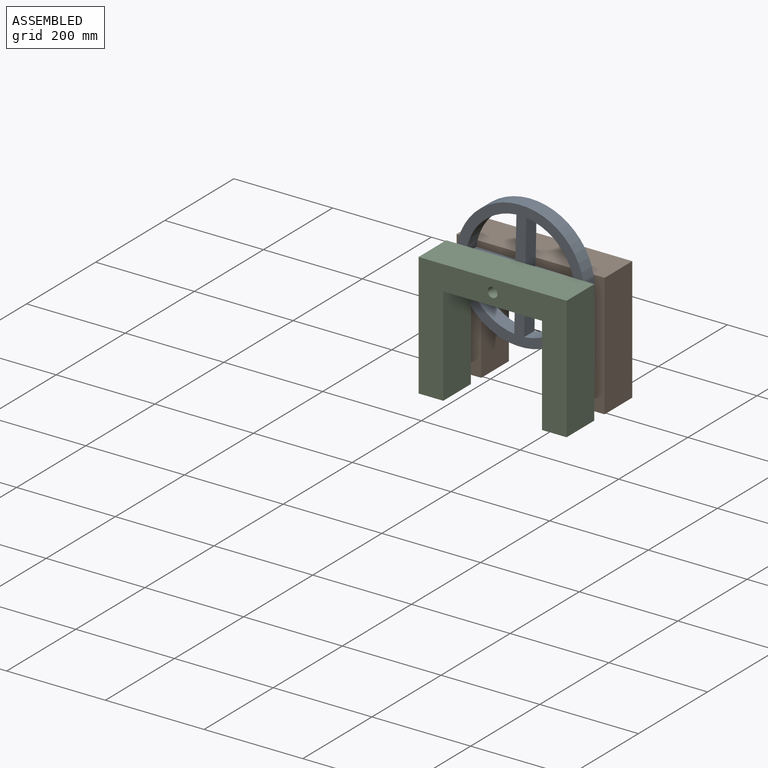
[diagram: assembled view]
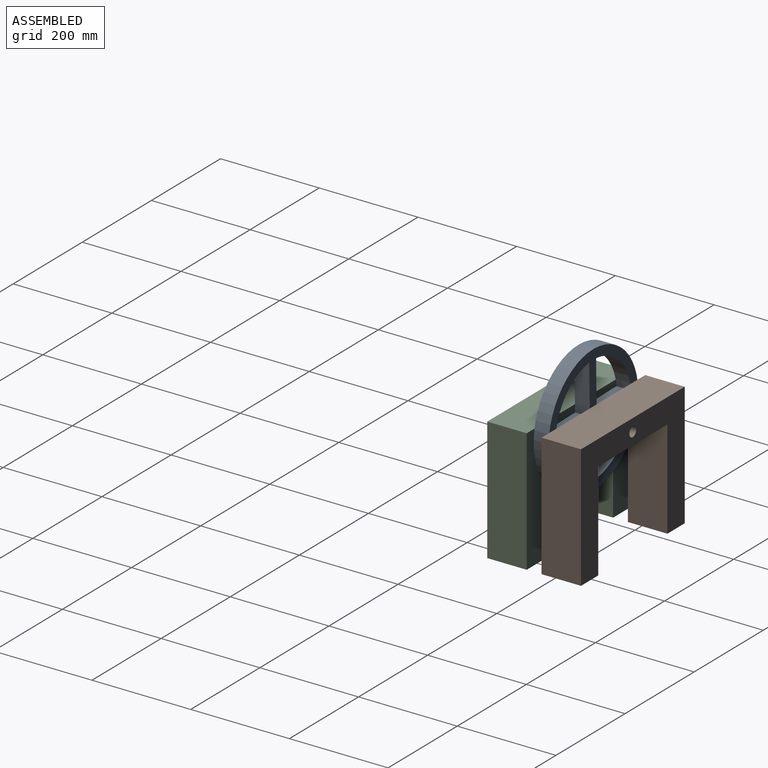
[diagram: assembled view, second angle]
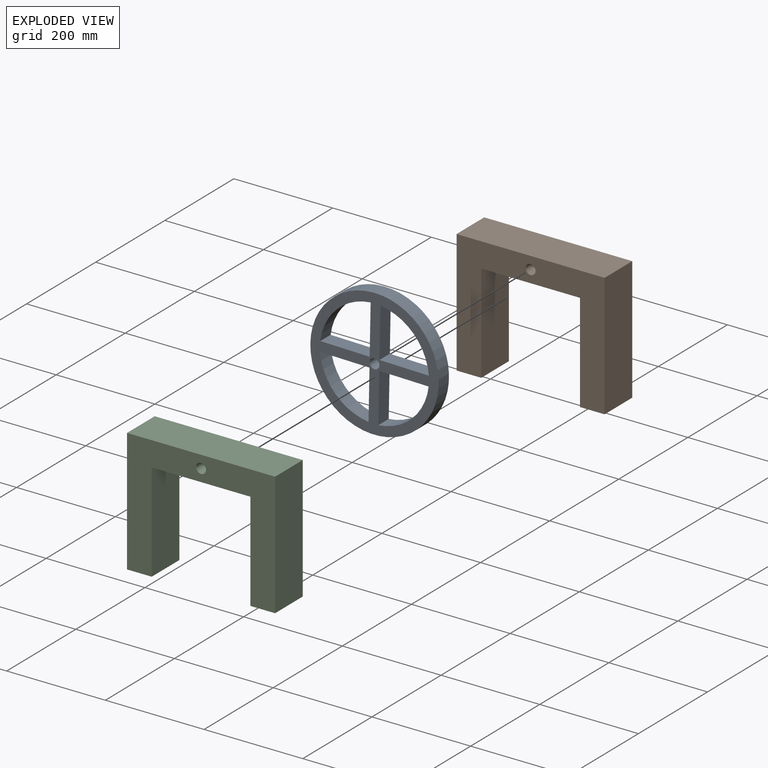
[diagram: exploded view]
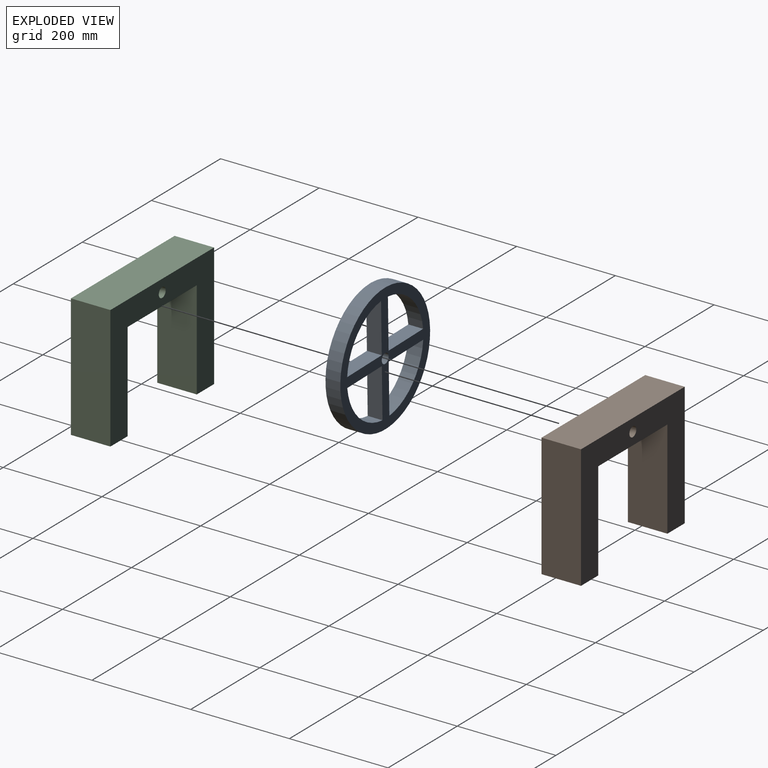
[diagram: exploded view, second angle]
ASSEMBLY  parts=3 mates=2
PART A: 16 faces, bbox 260x30x260 mm
  f0: plane 100x30mm, normal (-1,0,0), area 3000mm2, adj f1,f13,f14,f15
  f1: plane 100x30mm, normal (0,0,1), area 3000mm2, adj f0,f13,f14,f15
  f2: plane 100x30mm, normal (0,0,1), area 3000mm2, adj f3,f8,f14,f15
  f3: plane 100x30mm, normal (1,0,0), area 3000mm2, adj f2,f8,f14,f15
  f4: plane 100x30mm, normal (1,0,0), area 3000mm2, adj f5,f9,f14,f15
  f5: plane 100x30mm, normal (0,0,-1), area 3000mm2, adj f4,f9,f14,f15
  f6: plane 100x30mm, normal (0,0,-1), area 3000mm2, adj f7,f10,f14,f15
  f7: plane 100x30mm, normal (-1,0,0), area 3000mm2, adj f6,f10,f14,f15
  f8: cylinder r=111.44mm len=100mm, axis (0,1,0), area 4596.2mm2, adj f2,f3,f14,f15
  f9: cylinder r=111.44mm len=100mm, axis (0,1,0), area 4596.2mm2, adj f4,f5,f14,f15
  f10: cylinder r=111.44mm len=100mm, axis (0,1,0), area 4596.2mm2, adj f6,f7,f14,f15
  f11: cylinder r=130mm len=260mm, axis (0,1,0), area 24504.4mm2, adj f14,f15
  f12: cylinder r=10mm len=30mm, axis (0,1,0), area 1885mm2, adj f14,f15
  f13: cylinder r=111.44mm len=100mm, axis (0,1,0), area 4596.2mm2, adj f0,f1,f14,f15
  f14: plane 260x260mm, normal (0,-1,0), area 22994.3mm2, adj f0,f1,f2,f3,f4,f5,f6,f7
  f15: plane 260x260mm, normal (0,1,0), area 22994.3mm2, adj f0,f1,f2,f3,f4,f5,f6,f7
PART B: 11 faces, bbox 300x80x250 mm
  f0: plane 250x80mm, normal (-1,0,0), area 20000mm2, adj f1,f7,f9,f10
  f1: plane 80x50mm, normal (0,0,-1), area 4000mm2, adj f0,f2,f9,f10
  f2: plane 200x80mm, normal (1,0,0), area 16000mm2, adj f1,f3,f9,f10
  f3: plane 200x80mm, normal (0,0,-1), area 16000mm2, adj f2,f4,f9,f10
  f4: plane 200x80mm, normal (-1,0,0), area 16000mm2, adj f3,f5,f9,f10
  f5: plane 80x50mm, normal (0,0,-1), area 4000mm2, adj f4,f6,f9,f10
  f6: plane 250x80mm, normal (1,0,0), area 20000mm2, adj f5,f7,f9,f10
  f7: plane 300x80mm, normal (0,0,1), area 24000mm2, adj f0,f6,f9,f10
  f8: cylinder r=10mm len=80mm, axis (0,1,0), area 5026.5mm2, adj f9,f10
  f9: plane 300x250mm, normal (0,-1,0), area 34685.8mm2, adj f0,f1,f2,f3,f4,f5,f6,f7
  f10: plane 300x250mm, normal (0,1,0), area 34685.8mm2, adj f0,f1,f2,f3,f4,f5,f6,f7
PART C: same geometry as B
PLACE A rot(axis=(0,1,0),91.1deg) t=(-105.83,-18.3,134.19)mm
PLACE B t=(-55.83,61.7,-15.81)mm fixed
PLACE C t=(-55.83,-48.3,-15.81)mm fixed
MATE revolute A.f12 <-> B.f8  axis (0,1,0) through (-105.83,-18.3,134.19)mm
MATE revolute A.f12 <-> C.f8  axis (0,1,0) through (-105.83,-48.3,134.19)mm
